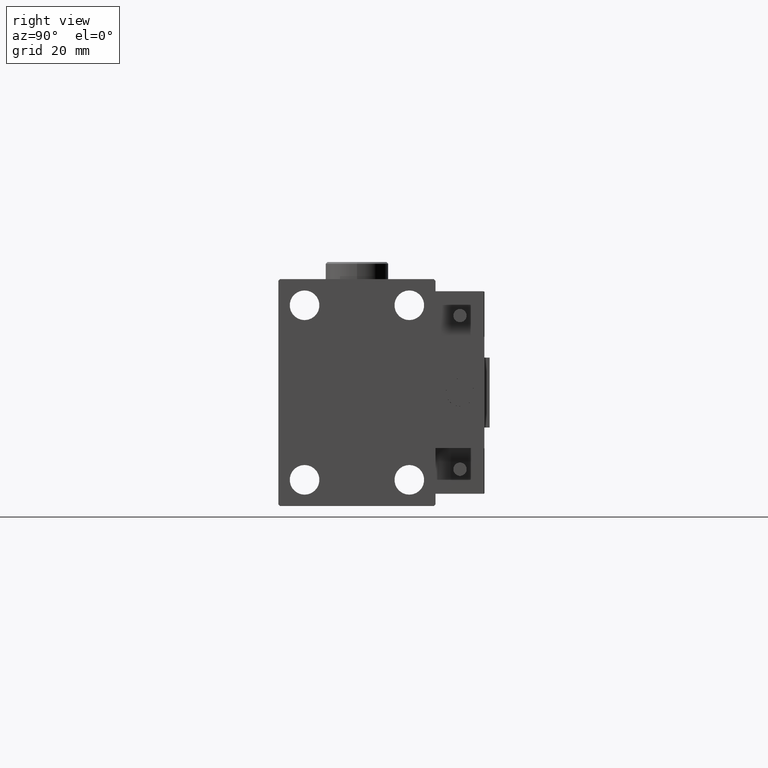
[diagram: clean part render]
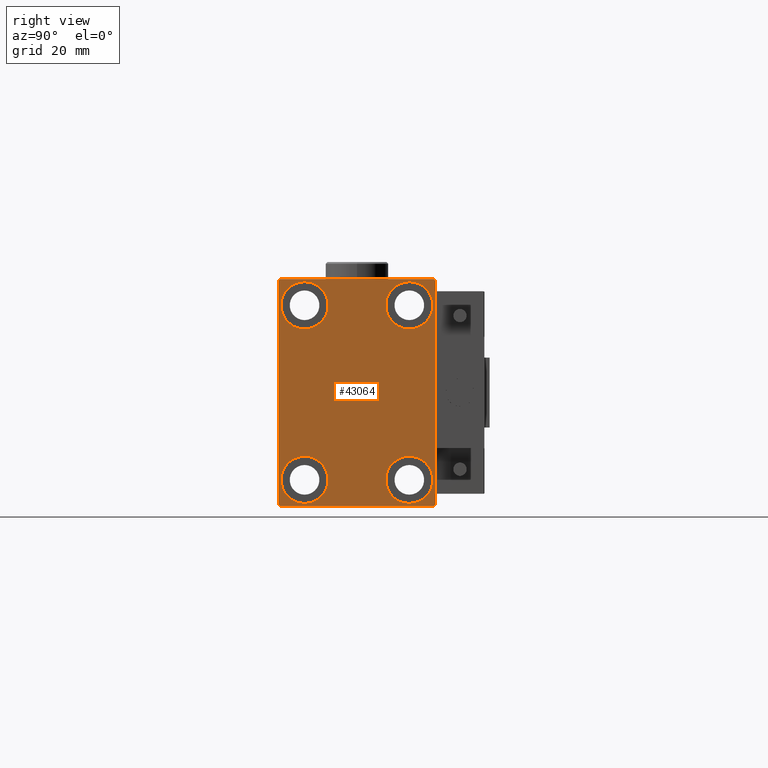
[diagram: same view with one face highlighted and labeled with its STEP entity id]
A machine part, right view. The second image highlights one B-rep face of the part: STEP entity #43064.
In plain terms, the highlighted planar face has unit normal (1, 0, 0).
Its self-contained STEP definition (entity closure, byte-faithful):
#420 = EDGE_CURVE ( 'NONE', #46484, #30904, #1512, .T. ) ;
#623 = VECTOR ( 'NONE', #29048, 1000.000000000000000 ) ;
#1357 = EDGE_CURVE ( 'NONE', #19457, #46484, #43873, .T. ) ;
#1512 = LINE ( 'NONE', #6698, #25713 ) ;
#1775 = ORIENTED_EDGE ( 'NONE', *, *, #11200, .T. ) ;
#2337 = FACE_BOUND ( 'NONE', #7360, .T. ) ;
#2761 = EDGE_CURVE ( 'NONE', #39488, #33768, #29370, .T. ) ;
#2916 = CARTESIAN_POINT ( 'NONE',  ( 70.00000000000000000, 14.99999999999999645, -31.75000000000000000 ) ) ;
#3699 = CARTESIAN_POINT ( 'NONE',  ( 70.00000000000000000, 21.99999999999999289, 32.50000000000000000 ) ) ;
#3722 = ORIENTED_EDGE ( 'NONE', *, *, #1357, .T. ) ;
#4289 = DIRECTION ( 'NONE',  ( 0.000000000000000000, 0.000000000000000000, 1.000000000000000000 ) ) ;
#4801 = VECTOR ( 'NONE', #18318, 999.9999999999998863 ) ;
#4914 = ORIENTED_EDGE ( 'NONE', *, *, #2761, .T. ) ;
#5685 = AXIS2_PLACEMENT_3D ( 'NONE', #31729, #44640, #10583 ) ;
#6050 = AXIS2_PLACEMENT_3D ( 'NONE', #36149, #35879, #41076 ) ;
#6365 = ORIENTED_EDGE ( 'NONE', *, *, #420, .T. ) ;
#6596 = DIRECTION ( 'NONE',  ( 0.000000000000000000, 0.000000000000000000, 1.000000000000000000 ) ) ;
#6698 = CARTESIAN_POINT ( 'NONE',  ( 70.00000000000000000, -22.50000000000000711, 32.49999999999999289 ) ) ;
#6739 = FACE_OUTER_BOUND ( 'NONE', #31576, .T. ) ;
#7360 = EDGE_LOOP ( 'NONE', ( #40064, #23921 ) ) ;
#7938 = ORIENTED_EDGE ( 'NONE', *, *, #18180, .T. ) ;
#8983 = CIRCLE ( 'NONE', #13346, 6.749999999999999112 ) ;
#9464 = CIRCLE ( 'NONE', #31379, 6.749999999999999112 ) ;
#9549 = VERTEX_POINT ( 'NONE', #43020 ) ;
#9957 = VECTOR ( 'NONE', #26307, 1000.000000000000114 ) ;
#10583 = DIRECTION ( 'NONE',  ( 0.000000000000000000, 0.000000000000000000, 1.000000000000000000 ) ) ;
#10830 = CIRCLE ( 'NONE', #21343, 6.749999999999999112 ) ;
#10871 = EDGE_CURVE ( 'NONE', #31634, #9549, #46209, .T. ) ;
#11200 = EDGE_CURVE ( 'NONE', #22768, #14711, #23390, .T. ) ;
#11903 = CIRCLE ( 'NONE', #12760, 6.749999999999999112 ) ;
#11960 = FACE_BOUND ( 'NONE', #32834, .T. ) ;
#12760 = AXIS2_PLACEMENT_3D ( 'NONE', #52203, #48889, #26925 ) ;
#13346 = AXIS2_PLACEMENT_3D ( 'NONE', #22140, #17484, #38926 ) ;
#14711 = VERTEX_POINT ( 'NONE', #53728 ) ;
#17211 = CARTESIAN_POINT ( 'NONE',  ( 70.00000000000000000, -15.00000000000000355, -18.25000000000000355 ) ) ;
#17484 = DIRECTION ( 'NONE',  ( -1.000000000000000000, -0.000000000000000000, -0.000000000000000000 ) ) ;
#17707 = CARTESIAN_POINT ( 'NONE',  ( 70.00000000000000000, -22.50000000000000711, -32.00000000000000711 ) ) ;
#17859 = EDGE_CURVE ( 'NONE', #33768, #39488, #10830, .T. ) ;
#18180 = EDGE_CURVE ( 'NONE', #9549, #21768, #53596, .T. ) ;
#18318 = DIRECTION ( 'NONE',  ( -0.000000000000000000, -0.7071067811865425767, 0.7071067811865525687 ) ) ;
#18514 = CARTESIAN_POINT ( 'NONE',  ( 70.00000000000000000, -27.25000000000032330, -27.24999999999957012 ) ) ;
#19209 = VERTEX_POINT ( 'NONE', #26632 ) ;
#19457 = VERTEX_POINT ( 'NONE', #54076 ) ;
#19514 = CARTESIAN_POINT ( 'NONE',  ( 70.00000000000000000, 27.25000000000032685, -27.24999999999957012 ) ) ;
#19858 = DIRECTION ( 'NONE',  ( 0.000000000000000000, 0.000000000000000000, 1.000000000000000000 ) ) ;
#20097 = VERTEX_POINT ( 'NONE', #43142 ) ;
#20122 = CARTESIAN_POINT ( 'NONE',  ( 70.00000000000000000, -15.00000000000000355, -25.00000000000000000 ) ) ;
#20262 = DIRECTION ( 'NONE',  ( 0.000000000000000000, -1.067522139062650425E-16, 1.000000000000000000 ) ) ;
#20364 = CARTESIAN_POINT ( 'NONE',  ( 70.00000000000000000, -14.99999999999999645, 25.00000000000000000 ) ) ;
#20754 = EDGE_CURVE ( 'NONE', #28650, #20916, #46902, .T. ) ;
#20780 = ORIENTED_EDGE ( 'NONE', *, *, #20754, .T. ) ;
#20916 = VERTEX_POINT ( 'NONE', #3699 ) ;
#21244 = CARTESIAN_POINT ( 'NONE',  ( 70.00000000000000000, -22.50000000000000711, 31.99999999999999289 ) ) ;
#21343 = AXIS2_PLACEMENT_3D ( 'NONE', #20122, #44870, #19858 ) ;
#21768 = VERTEX_POINT ( 'NONE', #22967 ) ;
#22140 = CARTESIAN_POINT ( 'NONE',  ( 70.00000000000000000, 15.00000000000000355, 25.00000000000000000 ) ) ;
#22768 = VERTEX_POINT ( 'NONE', #35569 ) ;
#22967 = CARTESIAN_POINT ( 'NONE',  ( 70.00000000000000000, 22.50000000000000000, -32.00000000000002132 ) ) ;
#23390 = CIRCLE ( 'NONE', #44574, 6.749999999999999112 ) ;
#23921 = ORIENTED_EDGE ( 'NONE', *, *, #49440, .T. ) ;
#24348 = CARTESIAN_POINT ( 'NONE',  ( 70.00000000000000000, 14.99999999999999645, -25.00000000000000000 ) ) ;
#24384 = ORIENTED_EDGE ( 'NONE', *, *, #45950, .T. ) ;
#24768 = DIRECTION ( 'NONE',  ( 0.000000000000000000, 0.000000000000000000, 1.000000000000000000 ) ) ;
#25322 = DIRECTION ( 'NONE',  ( 0.000000000000000000, 1.000000000000000000, 0.000000000000000000 ) ) ;
#25713 = VECTOR ( 'NONE', #31441, 1000.000000000000000 ) ;
#26106 = EDGE_CURVE ( 'NONE', #32583, #19209, #11903, .T. ) ;
#26307 = DIRECTION ( 'NONE',  ( 0.000000000000000000, -0.7071067811865474617, -0.7071067811865474617 ) ) ;
#26415 = DIRECTION ( 'NONE',  ( 0.000000000000000000, 0.000000000000000000, 1.000000000000000000 ) ) ;
#26632 = CARTESIAN_POINT ( 'NONE',  ( 70.00000000000000000, 14.99999999999999645, -18.25000000000000355 ) ) ;
#26925 = DIRECTION ( 'NONE',  ( 0.000000000000000000, 0.000000000000000000, 1.000000000000000000 ) ) ;
#27476 = CARTESIAN_POINT ( 'NONE',  ( 70.00000000000000000, -14.99999999999999645, 25.00000000000000000 ) ) ;
#28650 = VERTEX_POINT ( 'NONE', #40528 ) ;
#29048 = DIRECTION ( 'NONE',  ( 0.000000000000000000, -1.000000000000000000, -1.541976423090495387E-16 ) ) ;
#29370 = CIRCLE ( 'NONE', #5685, 6.749999999999999112 ) ;
#30462 = EDGE_CURVE ( 'NONE', #20916, #19457, #45535, .T. ) ;
#30603 = ORIENTED_EDGE ( 'NONE', *, *, #26106, .T. ) ;
#30904 = VERTEX_POINT ( 'NONE', #17707 ) ;
#31301 = EDGE_CURVE ( 'NONE', #45866, #20097, #9464, .T. ) ;
#31379 = AXIS2_PLACEMENT_3D ( 'NONE', #52508, #39866, #26415 ) ;
#31441 = DIRECTION ( 'NONE',  ( 0.000000000000000000, 0.000000000000000000, -1.000000000000000000 ) ) ;
#31576 = EDGE_LOOP ( 'NONE', ( #44891, #3722, #6365, #40491, #48909, #7938, #43907, #20780 ) ) ;
#31634 = VERTEX_POINT ( 'NONE', #32202 ) ;
#31674 = EDGE_LOOP ( 'NONE', ( #30603, #24384 ) ) ;
#31729 = CARTESIAN_POINT ( 'NONE',  ( 70.00000000000000000, -15.00000000000000355, -25.00000000000000000 ) ) ;
#32202 = CARTESIAN_POINT ( 'NONE',  ( 70.00000000000000000, -22.00000000000002132, -32.50000000000000711 ) ) ;
#32583 = VERTEX_POINT ( 'NONE', #2916 ) ;
#32708 = DIRECTION ( 'NONE',  ( -0.000000000000000000, 0.7071067811865376918, 0.7071067811865573427 ) ) ;
#32748 = CARTESIAN_POINT ( 'NONE',  ( 70.00000000000000000, -22.50000000000000711, -32.50000000000000711 ) ) ;
#32834 = EDGE_LOOP ( 'NONE', ( #53855, #4914 ) ) ;
#33768 = VERTEX_POINT ( 'NONE', #41870 ) ;
#34172 = CIRCLE ( 'NONE', #41176, 6.749999999999999112 ) ;
#34182 = EDGE_CURVE ( 'NONE', #14711, #22768, #34172, .T. ) ;
#34206 = DIRECTION ( 'NONE',  ( -0.000000000000000000, 0.7071067811865378028, -0.7071067811865573427 ) ) ;
#34484 = LINE ( 'NONE', #18514, #48524 ) ;
#34996 = EDGE_CURVE ( 'NONE', #21768, #28650, #45294, .T. ) ;
#35112 = CARTESIAN_POINT ( 'NONE',  ( 70.00000000000000000, -27.25000000000000000, 27.25000000000000000 ) ) ;
#35399 = VECTOR ( 'NONE', #32708, 1000.000000000000114 ) ;
#35569 = CARTESIAN_POINT ( 'NONE',  ( 70.00000000000000000, -14.99999999999999645, 18.25000000000000355 ) ) ;
#35879 = DIRECTION ( 'NONE',  ( 1.000000000000000000, 0.000000000000000000, 0.000000000000000000 ) ) ;
#35916 = CARTESIAN_POINT ( 'NONE',  ( 70.00000000000000000, 15.00000000000000355, 18.25000000000000355 ) ) ;
#36149 = CARTESIAN_POINT ( 'NONE',  ( 70.00000000000000000, 0.000000000000000000, 0.000000000000000000 ) ) ;
#36702 = PLANE ( 'NONE',  #6050 ) ;
#36961 = FACE_BOUND ( 'NONE', #44519, .T. ) ;
#37152 = DIRECTION ( 'NONE',  ( -1.000000000000000000, -0.000000000000000000, -0.000000000000000000 ) ) ;
#37565 = CARTESIAN_POINT ( 'NONE',  ( 70.00000000000000000, 22.49999999999999289, 32.50000000000000000 ) ) ;
#37860 = CARTESIAN_POINT ( 'NONE',  ( 70.00000000000000000, 22.50000000000000000, -32.50000000000000711 ) ) ;
#38926 = DIRECTION ( 'NONE',  ( 0.000000000000000000, 0.000000000000000000, 1.000000000000000000 ) ) ;
#39488 = VERTEX_POINT ( 'NONE', #17211 ) ;
#39866 = DIRECTION ( 'NONE',  ( -1.000000000000000000, -0.000000000000000000, -0.000000000000000000 ) ) ;
#40064 = ORIENTED_EDGE ( 'NONE', *, *, #31301, .T. ) ;
#40491 = ORIENTED_EDGE ( 'NONE', *, *, #51553, .T. ) ;
#40528 = CARTESIAN_POINT ( 'NONE',  ( 70.00000000000000000, 22.49999999999999289, 31.99999999999999289 ) ) ;
#41076 = DIRECTION ( 'NONE',  ( 0.000000000000000000, 0.000000000000000000, -1.000000000000000000 ) ) ;
#41176 = AXIS2_PLACEMENT_3D ( 'NONE', #20364, #37152, #24768 ) ;
#41870 = CARTESIAN_POINT ( 'NONE',  ( 70.00000000000000000, -15.00000000000000355, -31.75000000000000000 ) ) ;
#42500 = CARTESIAN_POINT ( 'NONE',  ( 70.00000000000000000, 27.25000000000014921, 27.24999999999976907 ) ) ;
#42821 = VECTOR ( 'NONE', #25322, 1000.000000000000000 ) ;
#43020 = CARTESIAN_POINT ( 'NONE',  ( 70.00000000000000000, 22.00000000000001421, -32.50000000000000711 ) ) ;
#43064 = ADVANCED_FACE ( 'NONE', ( #53182, #36961, #2337, #11960, #6739 ), #36702, .T. ) ;
#43142 = CARTESIAN_POINT ( 'NONE',  ( 70.00000000000000000, 15.00000000000000355, 31.75000000000000000 ) ) ;
#43873 = LINE ( 'NONE', #35112, #9957 ) ;
#43907 = ORIENTED_EDGE ( 'NONE', *, *, #34996, .T. ) ;
#44232 = DIRECTION ( 'NONE',  ( -1.000000000000000000, -0.000000000000000000, -0.000000000000000000 ) ) ;
#44519 = EDGE_LOOP ( 'NONE', ( #1775, #45390 ) ) ;
#44574 = AXIS2_PLACEMENT_3D ( 'NONE', #27476, #44232, #6596 ) ;
#44640 = DIRECTION ( 'NONE',  ( -1.000000000000000000, -0.000000000000000000, -0.000000000000000000 ) ) ;
#44870 = DIRECTION ( 'NONE',  ( -1.000000000000000000, -0.000000000000000000, -0.000000000000000000 ) ) ;
#44891 = ORIENTED_EDGE ( 'NONE', *, *, #30462, .T. ) ;
#45294 = LINE ( 'NONE', #37860, #48987 ) ;
#45390 = ORIENTED_EDGE ( 'NONE', *, *, #34182, .T. ) ;
#45535 = LINE ( 'NONE', #37565, #623 ) ;
#45866 = VERTEX_POINT ( 'NONE', #35916 ) ;
#45950 = EDGE_CURVE ( 'NONE', #19209, #32583, #47454, .T. ) ;
#46054 = DIRECTION ( 'NONE',  ( -1.000000000000000000, -0.000000000000000000, -0.000000000000000000 ) ) ;
#46209 = LINE ( 'NONE', #32748, #42821 ) ;
#46484 = VERTEX_POINT ( 'NONE', #21244 ) ;
#46902 = LINE ( 'NONE', #42500, #4801 ) ;
#47454 = CIRCLE ( 'NONE', #50074, 6.749999999999999112 ) ;
#48524 = VECTOR ( 'NONE', #34206, 1000.000000000000000 ) ;
#48889 = DIRECTION ( 'NONE',  ( -1.000000000000000000, -0.000000000000000000, -0.000000000000000000 ) ) ;
#48909 = ORIENTED_EDGE ( 'NONE', *, *, #10871, .T. ) ;
#48987 = VECTOR ( 'NONE', #20262, 1000.000000000000000 ) ;
#49440 = EDGE_CURVE ( 'NONE', #20097, #45866, #8983, .T. ) ;
#50074 = AXIS2_PLACEMENT_3D ( 'NONE', #24348, #46054, #4289 ) ;
#51553 = EDGE_CURVE ( 'NONE', #30904, #31634, #34484, .T. ) ;
#52203 = CARTESIAN_POINT ( 'NONE',  ( 70.00000000000000000, 14.99999999999999645, -25.00000000000000000 ) ) ;
#52508 = CARTESIAN_POINT ( 'NONE',  ( 70.00000000000000000, 15.00000000000000355, 25.00000000000000000 ) ) ;
#53182 = FACE_BOUND ( 'NONE', #31674, .T. ) ;
#53596 = LINE ( 'NONE', #19514, #35399 ) ;
#53728 = CARTESIAN_POINT ( 'NONE',  ( 70.00000000000000000, -14.99999999999999645, 31.75000000000000000 ) ) ;
#53855 = ORIENTED_EDGE ( 'NONE', *, *, #17859, .T. ) ;
#54076 = CARTESIAN_POINT ( 'NONE',  ( 70.00000000000000000, -21.99999999999999289, 32.49999999999999289 ) ) ;